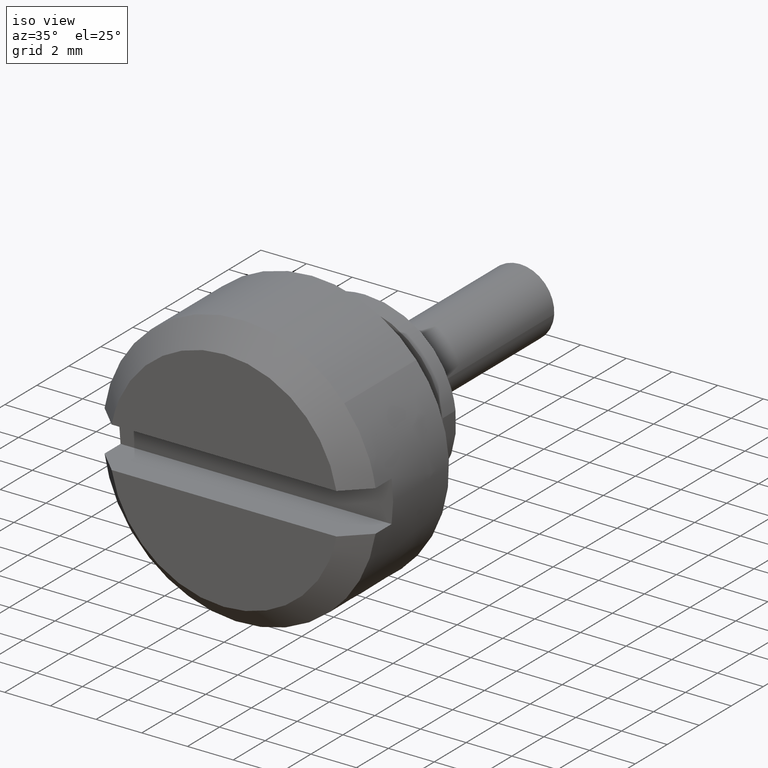
[diagram: clean part render]
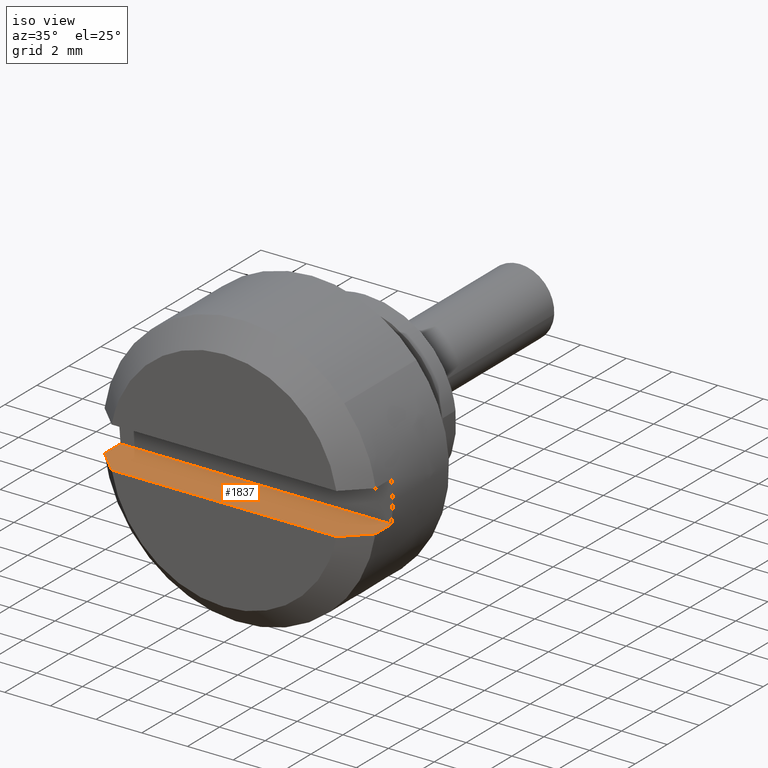
[diagram: same view with one face highlighted and labeled with its STEP entity id]
A machine part, iso view. The second image highlights one B-rep face of the part: STEP entity #1837.
In plain terms, the highlighted face is a freeform B-spline surface patch.
Its self-contained STEP definition (entity closure, byte-faithful):
#1629=CARTESIAN_POINT('',(-6.0,-5.932115979985550,-0.899999999999913));
#1630=VERTEX_POINT('',#1629);
#1644=CARTESIAN_POINT('',(-7.0,-5.932115979985531,-0.900000000000000));
#1645=VERTEX_POINT('',#1644);
#1646=CARTESIAN_POINT('',(-6.0,-5.932115979985550,-0.899999999999913));
#1647=CARTESIAN_POINT('',(-7.0,-5.932115979985531,-0.900000000000000));
#1648=QUASI_UNIFORM_CURVE('',1,(#1646,#1647),.UNSPECIFIED.,.F.,.U.);
#1649=EDGE_CURVE('',#1630,#1645,#1648,.T.);
#1651=CARTESIAN_POINT('',(-7.0,5.932115979985531,-0.900000000000000));
#1652=VERTEX_POINT('',#1651);
#1668=CARTESIAN_POINT('',(-6.0,5.932115979985550,-0.899999999999913));
#1669=VERTEX_POINT('',#1668);
#1670=CARTESIAN_POINT('',(-7.0,5.932115979985531,-0.900000000000000));
#1671=CARTESIAN_POINT('',(-6.0,5.932115979985550,-0.899999999999913));
#1672=QUASI_UNIFORM_CURVE('',1,(#1670,#1671),.UNSPECIFIED.,.F.,.U.);
#1673=EDGE_CURVE('',#1652,#1669,#1672,.T.);
#1800=CARTESIAN_POINT('',(-8.099899996123611,-6.524734454763845,-0.900000000000000));
#1801=CARTESIAN_POINT('',(-5.900099950232207,-6.524734454763845,-0.900000000000000));
#1802=CARTESIAN_POINT('',(-8.099899996123611,6.524734666912844,-0.900000000000000));
#1803=CARTESIAN_POINT('',(-5.900099950232207,6.524734666912844,-0.900000000000000));
#1804=B_SPLINE_SURFACE_WITH_KNOTS('',1,1,((#1800,#1802),(#1801,#1803)),.UNSPECIFIED.,.F.,.F.,.U.,(2,2),(2,2),(0.0,2.199800045891404),(0.0,13.049469121676690),.UNSPECIFIED.);
#1805=CARTESIAN_POINT('',(-6.0,5.932115979985550,-0.899999999999913));
#1806=CARTESIAN_POINT('',(-6.0,-5.932115979985550,-0.899999999999913));
#1807=QUASI_UNIFORM_CURVE('',1,(#1805,#1806),.UNSPECIFIED.,.F.,.U.);
#1808=EDGE_CURVE('',#1669,#1630,#1807,.T.);
#1809=ORIENTED_EDGE('',*,*,#1808,.F.);
#1810=ORIENTED_EDGE('',*,*,#1673,.F.);
#1811=CARTESIAN_POINT('',(-8.0,4.918333050943140,-0.900000000000000));
#1812=VERTEX_POINT('',#1811);
#1813=CARTESIAN_POINT('',(-8.0,4.918333050943140,-0.900000000000000));
#1814=CARTESIAN_POINT('',(-7.667146145494495,5.256736008597890,-0.900000000000000));
#1815=CARTESIAN_POINT('',(-7.333719979722740,5.594571625406596,-0.900000000000000));
#1816=CARTESIAN_POINT('',(-7.0,5.932115979985531,-0.900000000000000));
#1817=B_SPLINE_CURVE_WITH_KNOTS('',3,(#1813,#1814,#1815,#1816),.UNSPECIFIED.,.F.,.U.,(4,4),(0.909439502726439,1.0),.UNSPECIFIED.);
#1818=EDGE_CURVE('',#1812,#1652,#1817,.T.);
#1819=ORIENTED_EDGE('',*,*,#1818,.F.);
#1820=CARTESIAN_POINT('',(-8.0,-4.918333050943140,-0.900000000000000));
#1821=VERTEX_POINT('',#1820);
#1822=CARTESIAN_POINT('',(-8.0,4.918333050943140,-0.900000000000000));
#1823=CARTESIAN_POINT('',(-8.0,-4.918333050943140,-0.900000000000000));
#1824=QUASI_UNIFORM_CURVE('',1,(#1822,#1823),.UNSPECIFIED.,.F.,.U.);
#1825=EDGE_CURVE('',#1812,#1821,#1824,.T.);
#1826=ORIENTED_EDGE('',*,*,#1825,.T.);
#1827=CARTESIAN_POINT('',(-7.0,-5.932115979985531,-0.900000000000000));
#1828=CARTESIAN_POINT('',(-7.333720727770897,-5.594570497252879,-0.900000000000000));
#1829=CARTESIAN_POINT('',(-7.667147595700009,-5.256735125071742,-0.900000000000000));
#1830=CARTESIAN_POINT('',(-8.0,-4.918333050943140,-0.900000000000000));
#1831=B_SPLINE_CURVE_WITH_KNOTS('',3,(#1827,#1828,#1829,#1830),.UNSPECIFIED.,.F.,.U.,(4,4),(0.0,0.089797117276054),.UNSPECIFIED.);
#1832=EDGE_CURVE('',#1645,#1821,#1831,.T.);
#1833=ORIENTED_EDGE('',*,*,#1832,.F.);
#1834=ORIENTED_EDGE('',*,*,#1649,.F.);
#1835=EDGE_LOOP('',(#1809,#1810,#1819,#1826,#1833,#1834));
#1836=FACE_OUTER_BOUND('',#1835,.T.);
#1837=ADVANCED_FACE('',(#1836),#1804,.T.);